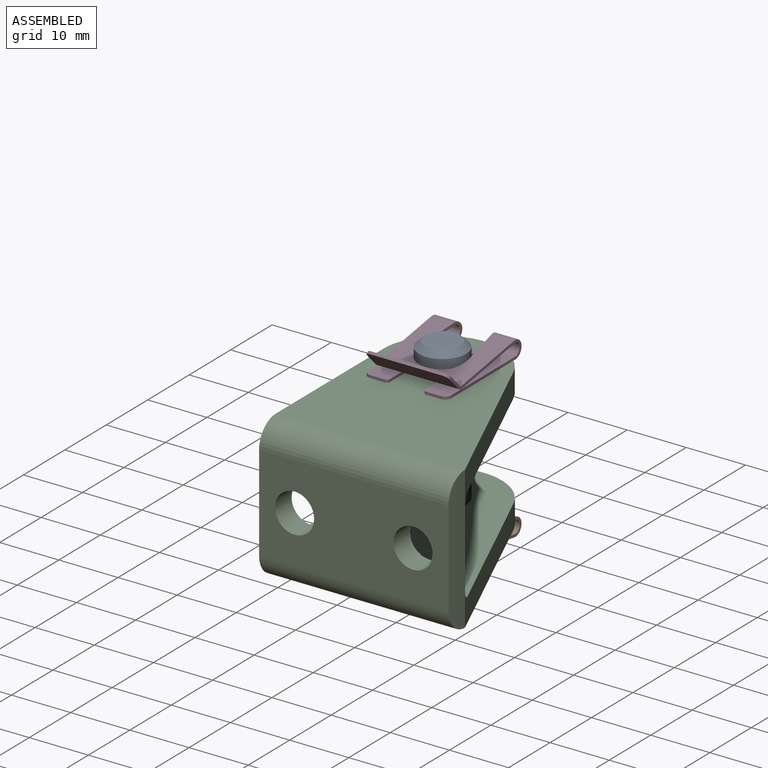
[diagram: assembled view]
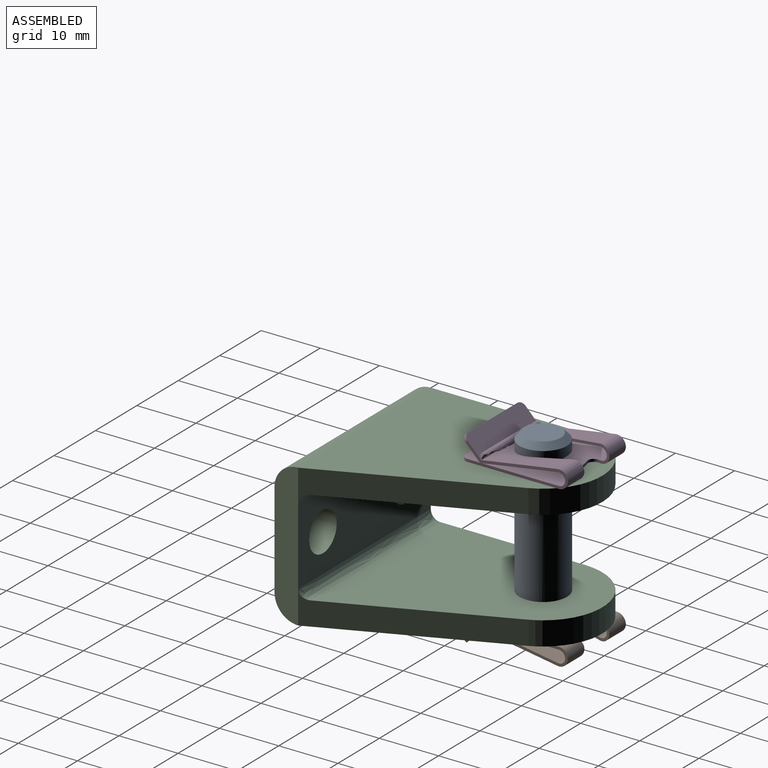
[diagram: assembled view, second angle]
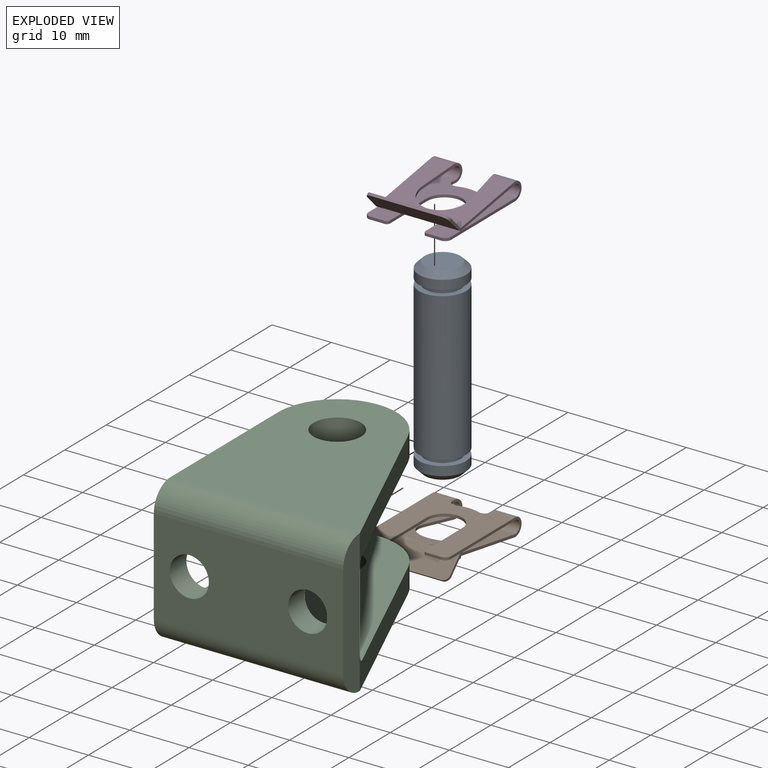
[diagram: exploded view]
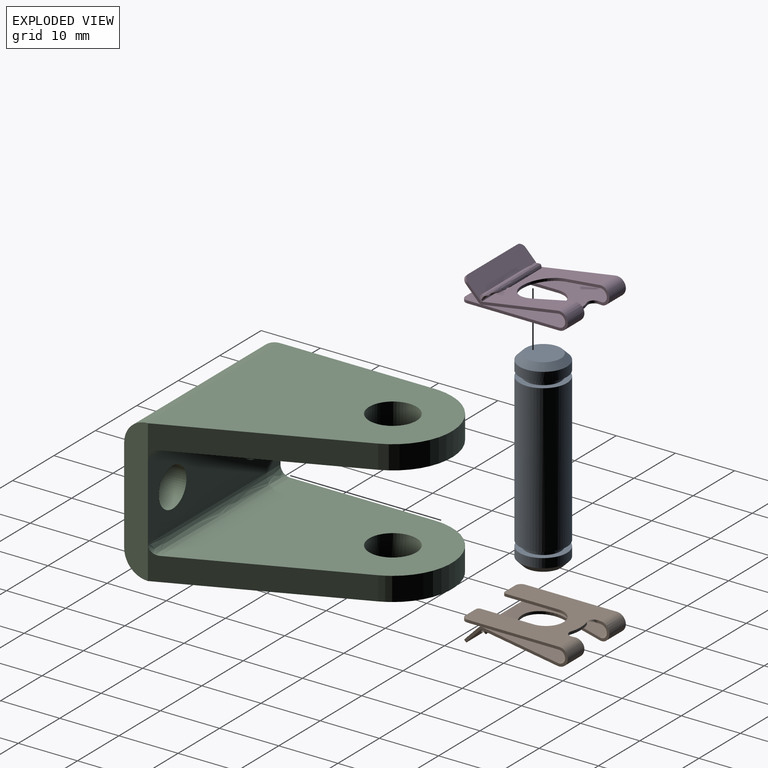
[diagram: exploded view, second angle]
ASSEMBLY  parts=4 mates=3
PART A: 13 faces, bbox 32x8x8 mm
  f0: plane 6x6mm, normal (-1,0,0), area 28.3mm2, adj f2
  f1: plane 6x6mm, normal (1,0,0), area 28.3mm2, adj f3
  f2: revolved ~8x8mm, area 31.1mm2, adj f0,f4
  f3: revolved ~8x8mm, area 62.2mm2, adj f1,f5
  f4: revolved ~8x8mm, area 39.2mm2, adj f2,f6
  f5: revolved ~8x8mm, area 39.2mm2, adj f3,f7
  f6: plane 8x8mm, normal (1,0,0), area 22mm2, adj f4,f8
  f7: plane 8x8mm, normal (-1,0,0), area 22mm2, adj f5,f9
  f8: revolved ~6x6mm, area 17.7mm2, adj f6,f10
  f9: revolved ~6x6mm, area 17.7mm2, adj f7,f11
  f10: plane 8x8mm, normal (-1,0,0), area 22mm2, adj f8,f12
  f11: plane 8x8mm, normal (1,0,0), area 22mm2, adj f9,f12
  f12: revolved ~25x8mm, area 628.3mm2, adj f10,f11
PART B: 33 faces, bbox 6.6x20.7x16.7 mm
  f0: plane 12x0.32mm, normal (0.72,-0.7,0), area 5.4mm2, adj f1,f2,f3,f4
  f1: revolved ~1.03x1.02mm, area 0.7mm2, adj f0,f3,f4,f20
  f2: revolved ~1.03x1.02mm, area 0.7mm2, adj f0,f3,f4,f22
  f3: plane 16.7x5.62mm, normal (-0.7,-0.72,0), area 56.7mm2, adj f0,f1,f2,f5,f20,f22
  f4: plane 14.9x3.82mm, normal (0.7,0.72,0), area 56.7mm2, adj f0,f1,f2,f6,f20,f22
  f5: revolved ~14x1.35mm, area 38.7mm2, adj f3,f20,f22,f24
  f6: revolved ~14x0.45mm, area 12.9mm2, adj f4,f20,f22,f26
  f7: revolved ~0.53x0.48mm, area 0.2mm2, adj f18,f24,f25,f26
  f8: revolved ~3.82x3mm, area 18.9mm2, adj f18,f20,f26,f28
  f9: plane 2.5x0.45mm, normal (0,-1,0), area 1.1mm2, adj f10,f21,f28,f29
  f10: revolved ~0.5x0.5mm, area 0.4mm2, adj f9,f11,f28,f29
  f11: plane 8.9x0.45mm, normal (0,0,-1), area 4mm2, adj f10,f12,f28,f29
  f12: revolved ~6x3mm, area 4.2mm2, adj f11,f13,f28,f29
  f13: plane 8.9x0.45mm, normal (0,0,1), area 4mm2, adj f12,f14,f28,f29
  f14: revolved ~0.5x0.5mm, area 0.4mm2, adj f13,f15,f28,f29
  f15: plane 2.5x0.45mm, normal (0,-1,0), area 1.1mm2, adj f14,f16,f28,f29
  f16: revolved ~1x1mm, area 0.7mm2, adj f15,f22,f28,f29
  f17: revolved ~1.32x1.12mm, area 0.9mm2, adj f18,f23,f28,f29
  f18: plane 8.52x3.4mm, normal (0,-0.12,-0.99), area 5.1mm2, adj f7,f8,f17,f19,f24,f26,f28,f29
  f19: revolved ~3.82x2.1mm, area 13.2mm2, adj f18,f20,f24,f29
  f20: plane 19.94x5.88mm, normal (0,0,1), area 16.3mm2, adj f1,f3,f4,f5,f6,f8,f19,f21
  f21: revolved ~1x1mm, area 0.7mm2, adj f9,f20,f28,f29
  f22: plane 19.94x5.88mm, normal (0,0,-1), area 16.3mm2, adj f2,f3,f4,f5,f6,f16,f24,f26
  f23: revolved ~3.83x0.45mm, area 1.8mm2, adj f17,f28,f29,f32
  f24: plane 16.7x15.52mm, normal (-0.99,0.16,0), area 105.6mm2, adj f5,f7,f18,f19,f20,f22,f25,f30
  f25: revolved ~8x4.47mm, area 5.9mm2, adj f7,f24,f26,f31
  f26: plane 14.9x13.72mm, normal (0.99,-0.16,0), area 106mm2, adj f6,f7,f8,f18,f20,f22,f25,f27
  f27: revolved ~3.82x3mm, area 18.9mm2, adj f22,f26,f28,f31
  f28: plane 16.5x14mm, normal (-1,0,0), area 151.2mm2, adj f8,f9,f10,f11,f12,f13,f14,f15
  f29: plane 16.5x14mm, normal (1,0,0), area 151.2mm2, adj f9,f10,f11,f12,f13,f14,f15,f16
  f30: revolved ~3.82x2.1mm, area 13.2mm2, adj f22,f24,f29,f31
  f31: plane 8.52x3.4mm, normal (0,-0.12,0.99), area 5.1mm2, adj f24,f25,f26,f27,f28,f29,f30,f32
  f32: revolved ~1.99x1.99mm, area 3.7mm2, adj f23,f28,f29,f31
PART C: 20 faces, bbox 32.3x40.3x24.4 mm
  f0: plane 30.22x13.09mm, normal (0.92,0.39,0), area 130.8mm2, adj f4,f7,f8,f9,f10
  f1: revolved ~8x8mm, area 100.5mm2, adj f8,f10
  f2: revolved ~6.6x6.6mm, area 82.9mm2, adj f6,f12
  f3: revolved ~6.6x6.6mm, area 82.9mm2, adj f6,f12
  f4: plane 24.1x4mm, normal (1,0,0), area 89.5mm2, adj f0,f6,f11,f12,f14,f15
  f5: revolved ~32x1.6mm, area 79.6mm2, adj f6,f13,f15,f17
  f6: plane 32x12.9mm, normal (0,1,0), area 344.3mm2, adj f2,f3,f4,f5,f7,f17
  f7: revolved ~32x1.6mm, area 79.6mm2, adj f0,f6,f8,f17
  f8: plane 34.42x31.32mm, normal (0,0,1), area 744.7mm2, adj f0,f1,f7,f9,f17
  f9: revolved ~19.19x10mm, area 109.5mm2, adj f0,f8,f10,f17
  f10: plane 36.02x32mm, normal (0,0,-1), area 795.4mm2, adj f0,f1,f9,f11,f17
  f11: revolved ~32x4mm, area 201.1mm2, adj f4,f10,f12,f17
  f12: plane 32x16.1mm, normal (0,-1,0), area 446.8mm2, adj f2,f3,f4,f11,f14,f17
  f13: plane 34.42x31.32mm, normal (0,0,-1), area 744.8mm2, adj f5,f15,f16,f17,f18
  f14: revolved ~32x4mm, area 201.1mm2, adj f4,f12,f17,f19
  f15: plane 30.22x13.09mm, normal (0.92,0.39,0), area 130.8mm2, adj f4,f5,f13,f16,f19
  f16: revolved ~19.19x10mm, area 109.5mm2, adj f13,f15,f17,f19
  f17: plane 30x24.1mm, normal (-1,0,0), area 298.6mm2, adj f5,f6,f7,f8,f9,f10,f11,f12
  f18: revolved ~8x8mm, area 100.5mm2, adj f13,f19
  f19: plane 36.02x32mm, normal (0,0,1), area 795.3mm2, adj f14,f15,f16,f17,f18
PART D: same geometry as B
PLACE A rot(axis=(0,-1,0),90deg) t=(-7.28,11.59,10.48)mm
PLACE B rot(axis=(0,1,0),90deg) t=(-7.28,12.05,-1.57)mm
PLACE C t=(-17.28,-18.41,10.48)mm
PLACE D rot(axis=(0,-1,0),90deg) t=(-7.28,12.05,22.53)mm
MATE fastened D.f28 <-> C.f19  axis (0,0,-1) through (-7.28,11.59,22.53)mm
MATE fastened A.f10 <-> B.f29  axis (0,0,1) through (-7.28,11.59,-2.02)mm
MATE fastened B.f28 <-> C.f10  axis (0,0,1) through (-7.28,11.59,-1.57)mm
